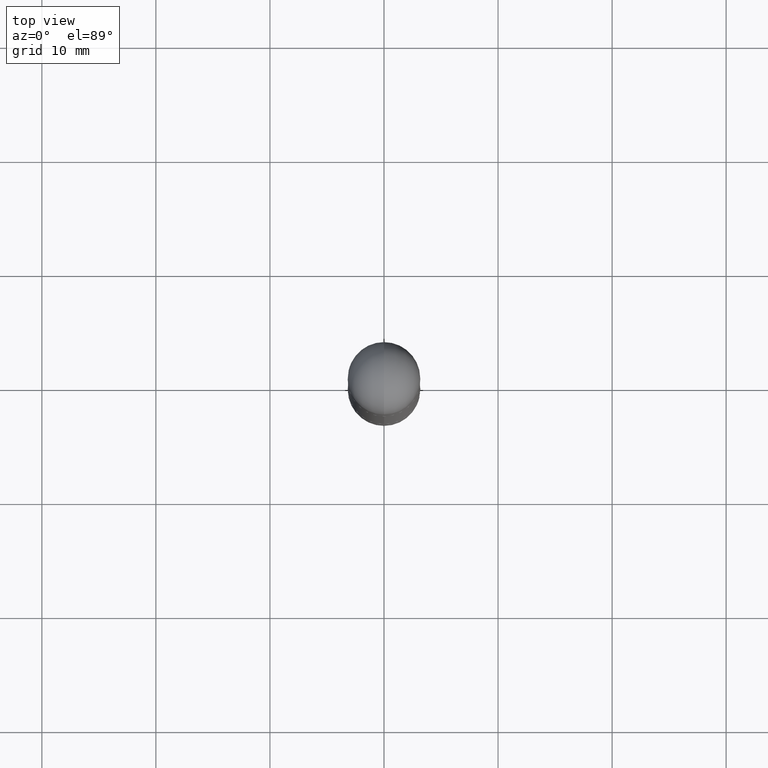
[diagram: clean part render]
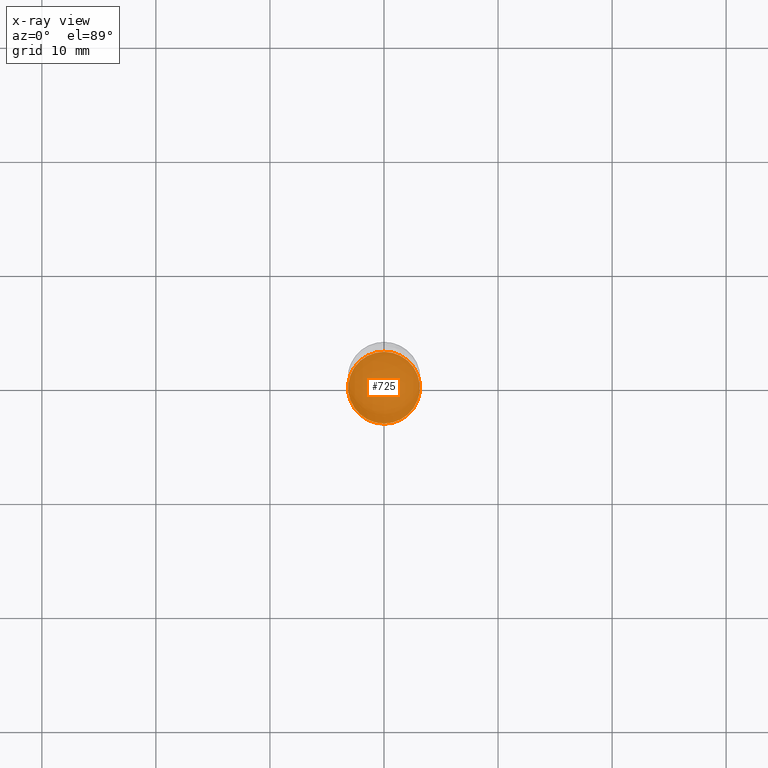
[diagram: x-ray — body ghosted, one internal face saturated and labeled with its STEP entity id]
A machine part, top view, then the same camera in x-ray: the body is ghosted and one INTERNAL B-rep face — a face not visible from any outside direction — is saturated and labeled: STEP entity #725.
In plain terms, the highlighted planar face has unit normal (-0, 0, 1).
Its self-contained STEP definition (entity closure, byte-faithful):
#17 = VERTEX_POINT ( 'NONE', #177 ) ;
#27 = ORIENTED_EDGE ( 'NONE', *, *, #437, .F. ) ;
#66 = DIRECTION ( 'NONE',  ( -6.982962677686265922E-15, -1.000000000000000000, 3.491879382952348982E-15 ) ) ;
#155 = CARTESIAN_POINT ( 'NONE',  ( 4.890381706938544982E-29, -6.983758765904696386E-15, -1.999999999999999778 ) ) ;
#170 = AXIS2_PLACEMENT_3D ( 'NONE', #155, #412, #383 ) ;
#177 = CARTESIAN_POINT ( 'NONE',  ( 8.846257060213744265E-16, 0.1239999999999930186, -2.000000000000000444 ) ) ;
#374 = DIRECTION ( 'NONE',  ( -2.445190853469272491E-29, 3.491879382952348982E-15, 1.000000000000000000 ) ) ;
#377 = VERTEX_POINT ( 'NONE', #754 ) ;
#383 = DIRECTION ( 'NONE',  ( -6.982962677686265922E-15, -1.000000000000000000, 4.406206441393973340E-15 ) ) ;
#404 = FACE_OUTER_BOUND ( 'NONE', #682, .T. ) ;
#412 = DIRECTION ( 'NONE',  ( -2.445190853469272491E-29, 3.491879382952348982E-15, 1.000000000000000000 ) ) ;
#437 = EDGE_CURVE ( 'NONE', #17, #377, #571, .T. ) ;
#441 = CARTESIAN_POINT ( 'NONE',  ( 4.890381706938544982E-29, -6.983758765904696386E-15, -1.999999999999999778 ) ) ;
#447 = DIRECTION ( 'NONE',  ( -6.982962677686265922E-15, -1.000000000000000000, 4.406206441393973340E-15 ) ) ;
#486 = EDGE_CURVE ( 'NONE', #377, #17, #732, .T. ) ;
#532 = PLANE ( 'NONE',  #670 ) ;
#571 = CIRCLE ( 'NONE', #170, 0.1239999999999999991 ) ;
#644 = DIRECTION ( 'NONE',  ( -2.445190853469272211E-29, 3.491879382952348982E-15, 1.000000000000000000 ) ) ;
#670 = AXIS2_PLACEMENT_3D ( 'NONE', #771, #644, #66 ) ;
#682 = EDGE_LOOP ( 'NONE', ( #760, #27 ) ) ;
#725 = ADVANCED_FACE ( 'NONE', ( #404 ), #532, .F. ) ;
#732 = CIRCLE ( 'NONE', #749, 0.1239999999999999991 ) ;
#749 = AXIS2_PLACEMENT_3D ( 'NONE', #441, #374, #447 ) ;
#754 = CARTESIAN_POINT ( 'NONE',  ( -8.658873720330480207E-16, -0.1240000000000069796, -1.999999999999999112 ) ) ;
#760 = ORIENTED_EDGE ( 'NONE', *, *, #486, .F. ) ;
#771 = CARTESIAN_POINT ( 'NONE',  ( 4.890381706938545543E-29, -6.983758765904697175E-15, -2.000000000000000000 ) ) ;